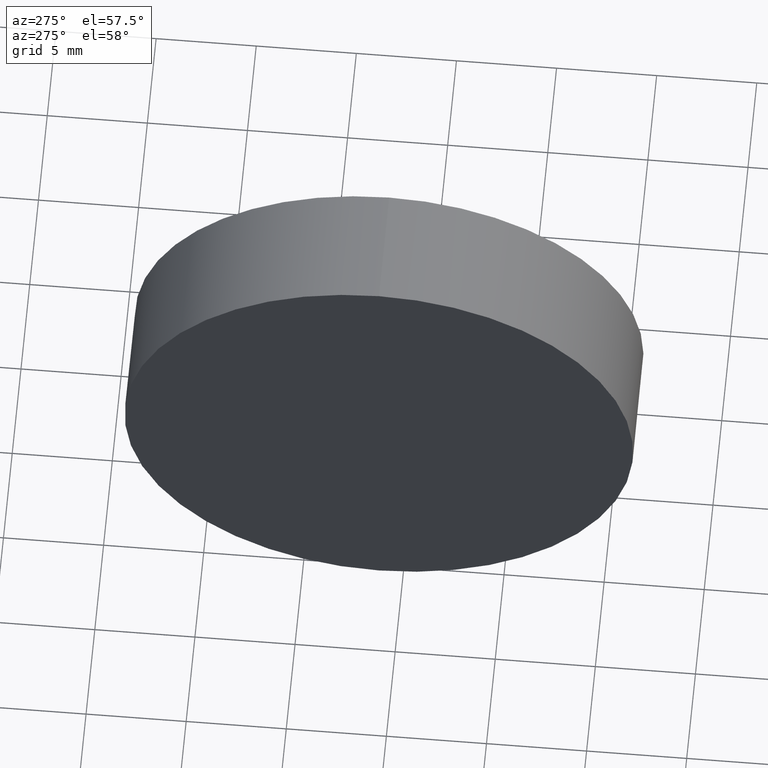
[diagram: clean part render]
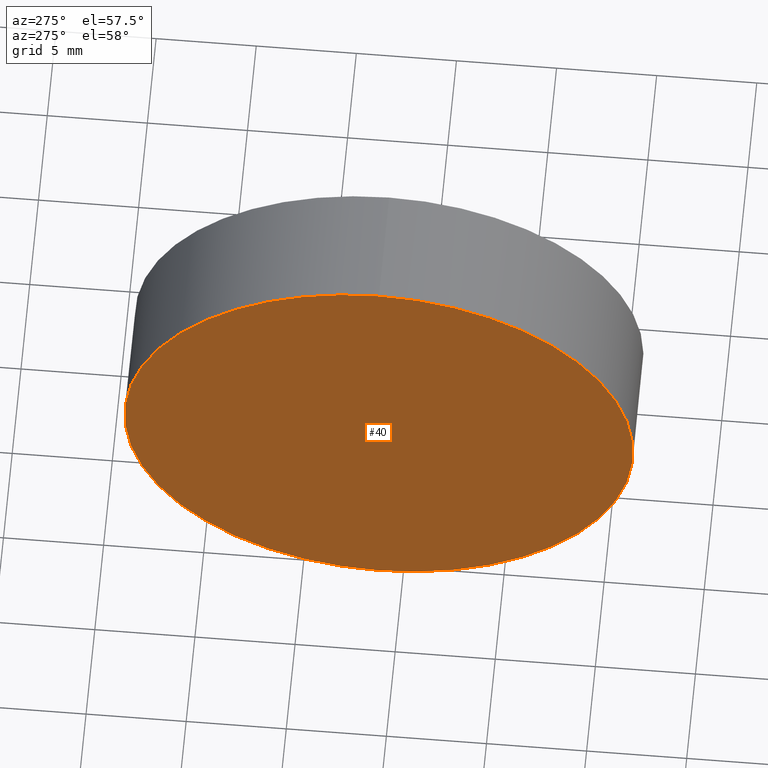
[diagram: same view with one face highlighted and labeled with its STEP entity id]
A machine part, auxiliary view. The second image highlights one B-rep face of the part: STEP entity #40.
In plain terms, the highlighted planar face has unit normal (1, 0, 0).
Its self-contained STEP definition (entity closure, byte-faithful):
#7 = AXIS2_PLACEMENT_3D ( 'NONE', #72, #96, #41 ) ;
#9 = CIRCLE ( 'NONE', #170, 12.70000000000000300 ) ;
#18 = DIRECTION ( 'NONE',  ( 0.0000000000000000000, 0.0000000000000000000, 1.000000000000000000 ) ) ;
#22 = AXIS2_PLACEMENT_3D ( 'NONE', #23, #129, #18 ) ;
#23 = CARTESIAN_POINT ( 'NONE',  ( 119.3629307920347200, 71.19398908659370300, 0.0000000000000000000 ) ) ;
#40 = ADVANCED_FACE ( 'NONE', ( #123 ), #185, .F. ) ;
#41 = DIRECTION ( 'NONE',  ( 0.0000000000000000000, 0.0000000000000000000, -1.000000000000000000 ) ) ;
#45 = DIRECTION ( 'NONE',  ( 0.0000000000000000000, 0.0000000000000000000, 1.000000000000000000 ) ) ;
#50 = VERTEX_POINT ( 'NONE', #153 ) ;
#72 = CARTESIAN_POINT ( 'NONE',  ( 119.3629307920347200, 71.19398908659370300, 0.0000000000000000000 ) ) ;
#87 = EDGE_LOOP ( 'NONE', ( #90, #93 ) ) ;
#88 = CIRCLE ( 'NONE', #22, 12.70000000000000300 ) ;
#90 = ORIENTED_EDGE ( 'NONE', *, *, #181, .T. ) ;
#93 = ORIENTED_EDGE ( 'NONE', *, *, #183, .T. ) ;
#96 = DIRECTION ( 'NONE',  ( 1.000000000000000000, 0.0000000000000000000, 0.0000000000000000000 ) ) ;
#123 = FACE_OUTER_BOUND ( 'NONE', #87, .T. ) ;
#126 = CARTESIAN_POINT ( 'NONE',  ( 119.3629307920347200, 71.19398908659370300, 12.70000000000000300 ) ) ;
#128 = CARTESIAN_POINT ( 'NONE',  ( 119.3629307920347200, 71.19398908659370300, 0.0000000000000000000 ) ) ;
#129 = DIRECTION ( 'NONE',  ( -1.000000000000000000, -0.0000000000000000000, -0.0000000000000000000 ) ) ;
#153 = CARTESIAN_POINT ( 'NONE',  ( 119.3629307920347200, 71.19398908659370300, -12.70000000000000300 ) ) ;
#164 = VERTEX_POINT ( 'NONE', #126 ) ;
#170 = AXIS2_PLACEMENT_3D ( 'NONE', #128, #174, #45 ) ;
#174 = DIRECTION ( 'NONE',  ( -1.000000000000000000, -0.0000000000000000000, -0.0000000000000000000 ) ) ;
#181 = EDGE_CURVE ( 'NONE', #164, #50, #9, .T. ) ;
#183 = EDGE_CURVE ( 'NONE', #50, #164, #88, .T. ) ;
#185 = PLANE ( 'NONE',  #7 ) ;